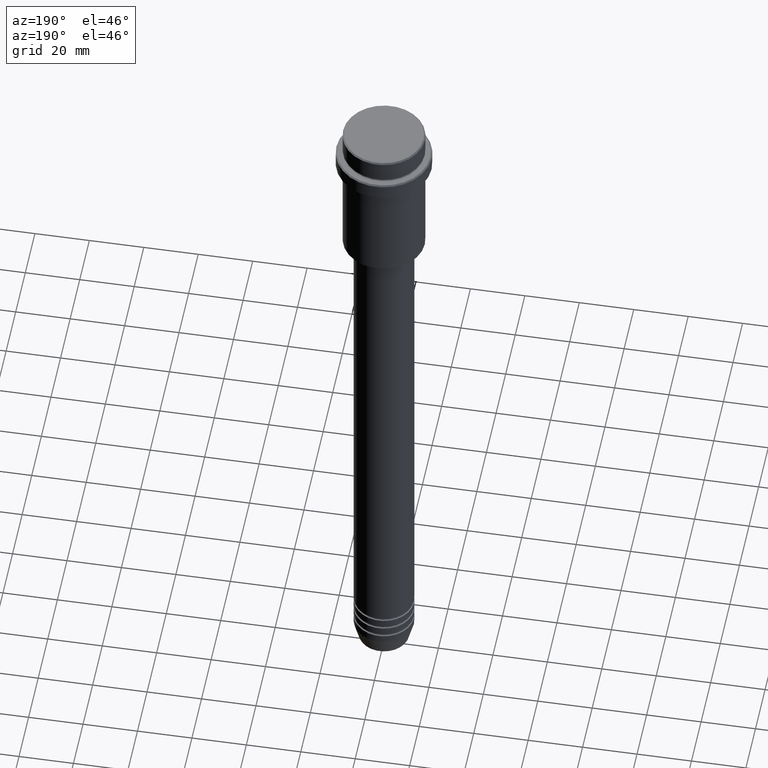
[diagram: clean part render]
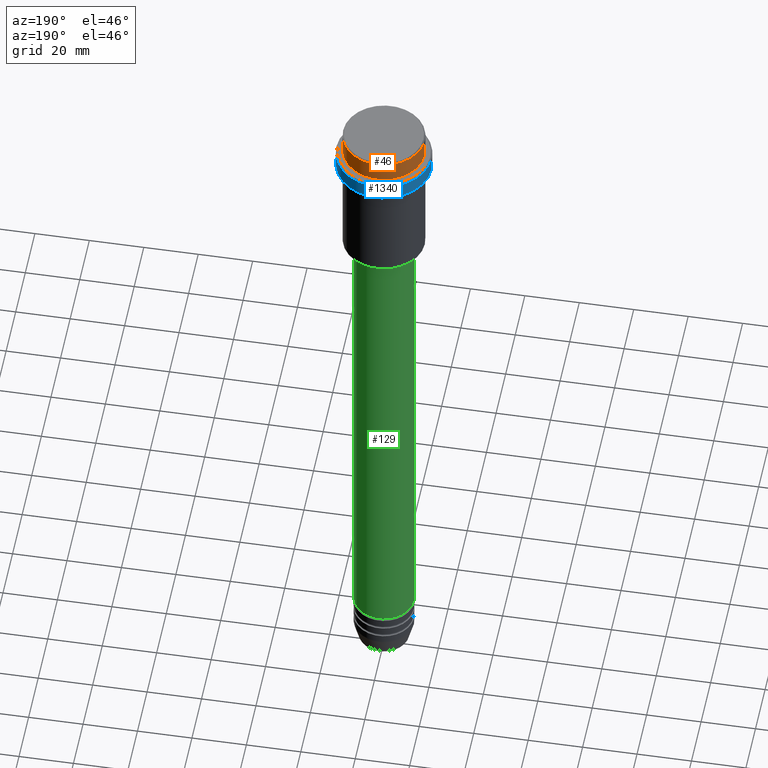
[diagram: same view with three faces highlighted in distinct colors, each labeled with its STEP entity id]
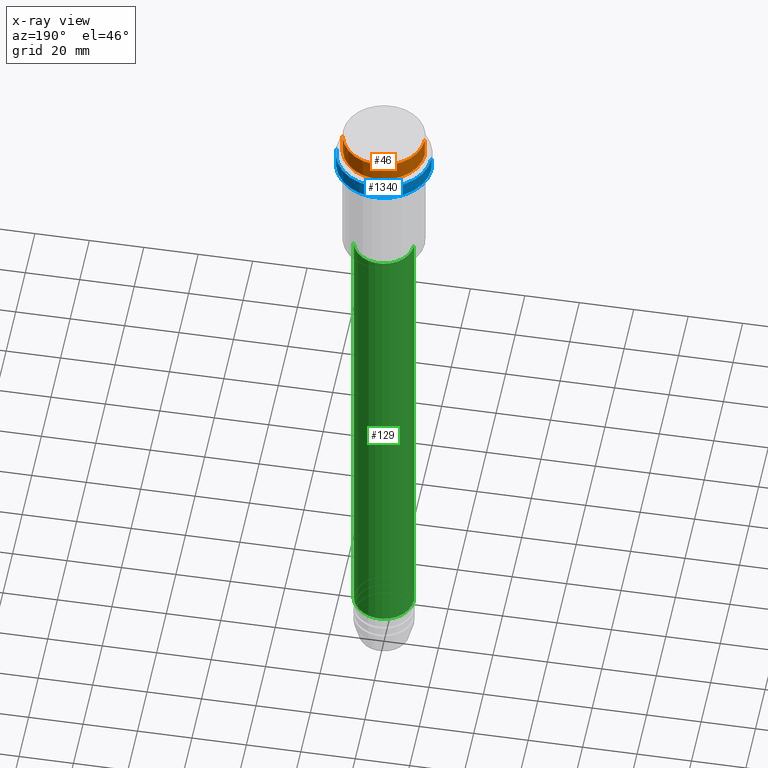
[diagram: x-ray of the same camera — body ghosted, the three highlighted faces saturated]
A machine part, auxiliary view with three faces highlighted in distinct colors.
The next image is the same camera in x-ray (body ghosted, the three faces saturated) — at least one of them is partly hidden behind the body in this view.
Their STEP definitions:

[orange] entity #46 — the highlighted cylindrical surface (partial cylindrical patch) has radius 15 mm, axis along (-0, -0, 1).
#21 = CARTESIAN_POINT ( 'NONE',  ( 0.000000000000000000, 0.000000000000000000, 0.000000000000000000 ) ) ;
#23 = CYLINDRICAL_SURFACE ( 'NONE', #1028, 15.00000000000000000 ) ;
#46 = ADVANCED_FACE ( 'NONE', ( #1266 ), #23, .T. ) ;
#82 = CIRCLE ( 'NONE', #259, 15.00000000000000000 ) ;
#83 = CARTESIAN_POINT ( 'NONE',  ( 15.00000000000000000, 0.000000000000000000, -7.999999999999998224 ) ) ;
#95 = CARTESIAN_POINT ( 'NONE',  ( 15.00000000000000000, 0.000000000000000000, -0.5000000000000108802 ) ) ;
#128 = CARTESIAN_POINT ( 'NONE',  ( -15.00000000000000000, 1.836970198721029589E-15, 0.000000000000000000 ) ) ;
#148 = CARTESIAN_POINT ( 'NONE',  ( -15.00000000000000000, 1.836970198721029589E-15, -7.999999999999998224 ) ) ;
#153 = ORIENTED_EDGE ( 'NONE', *, *, #730, .T. ) ;
#191 = AXIS2_PLACEMENT_3D ( 'NONE', #623, #1064, #1281 ) ;
#202 = ORIENTED_EDGE ( 'NONE', *, *, #1039, .T. ) ;
#215 = VECTOR ( 'NONE', #1031, 1000.000000000000000 ) ;
#259 = AXIS2_PLACEMENT_3D ( 'NONE', #668, #536, #1411 ) ;
#319 = DIRECTION ( 'NONE',  ( -0.000000000000000000, -0.000000000000000000, 1.000000000000000000 ) ) ;
#344 = VERTEX_POINT ( 'NONE', #95 ) ;
#512 = VERTEX_POINT ( 'NONE', #83 ) ;
#521 = DIRECTION ( 'NONE',  ( 1.000000000000000000, 0.000000000000000000, 0.000000000000000000 ) ) ;
#536 = DIRECTION ( 'NONE',  ( 0.000000000000000000, 0.000000000000000000, -1.000000000000000000 ) ) ;
#623 = CARTESIAN_POINT ( 'NONE',  ( 0.000000000000000000, 0.000000000000000000, -7.999999999999998224 ) ) ;
#665 = LINE ( 'NONE', #1187, #738 ) ;
#668 = CARTESIAN_POINT ( 'NONE',  ( 0.000000000000000000, 0.000000000000000000, -0.5000000000000108802 ) ) ;
#693 = ORIENTED_EDGE ( 'NONE', *, *, #1122, .F. ) ;
#709 = CIRCLE ( 'NONE', #191, 15.00000000000000000 ) ;
#730 = EDGE_CURVE ( 'NONE', #925, #344, #82, .T. ) ;
#738 = VECTOR ( 'NONE', #1106, 1000.000000000000000 ) ;
#771 = VERTEX_POINT ( 'NONE', #148 ) ;
#798 = LINE ( 'NONE', #128, #215 ) ;
#870 = EDGE_CURVE ( 'NONE', #771, #925, #798, .T. ) ;
#925 = VERTEX_POINT ( 'NONE', #1247 ) ;
#1028 = AXIS2_PLACEMENT_3D ( 'NONE', #21, #319, #521 ) ;
#1031 = DIRECTION ( 'NONE',  ( -0.000000000000000000, -0.000000000000000000, 1.000000000000000000 ) ) ;
#1039 = EDGE_CURVE ( 'NONE', #512, #771, #709, .T. ) ;
#1064 = DIRECTION ( 'NONE',  ( -0.000000000000000000, -0.000000000000000000, 1.000000000000000000 ) ) ;
#1106 = DIRECTION ( 'NONE',  ( -0.000000000000000000, -0.000000000000000000, 1.000000000000000000 ) ) ;
#1122 = EDGE_CURVE ( 'NONE', #512, #344, #665, .T. ) ;
#1187 = CARTESIAN_POINT ( 'NONE',  ( 15.00000000000000000, 0.000000000000000000, 0.000000000000000000 ) ) ;
#1247 = CARTESIAN_POINT ( 'NONE',  ( -15.00000000000000000, 1.836970198721029589E-15, -0.5000000000000108802 ) ) ;
#1266 = FACE_OUTER_BOUND ( 'NONE', #1373, .T. ) ;
#1281 = DIRECTION ( 'NONE',  ( 1.000000000000000000, 0.000000000000000000, 0.000000000000000000 ) ) ;
#1350 = ORIENTED_EDGE ( 'NONE', *, *, #870, .T. ) ;
#1373 = EDGE_LOOP ( 'NONE', ( #202, #1350, #153, #693 ) ) ;
#1411 = DIRECTION ( 'NONE',  ( 1.000000000000000000, 0.000000000000000000, 0.000000000000000000 ) ) ;

[blue] entity #1340 — the highlighted cylindrical surface (partial cylindrical patch) has radius 17.5 mm, axis along (-0, -0, 1).
#30 = LINE ( 'NONE', #491, #1361 ) ;
#68 = CARTESIAN_POINT ( 'NONE',  ( -17.50000000000000000, 2.143131898507868248E-15, 0.000000000000000000 ) ) ;
#124 = CARTESIAN_POINT ( 'NONE',  ( -17.50000000000000000, 2.143131898507868248E-15, -15.00000000000000000 ) ) ;
#126 = DIRECTION ( 'NONE',  ( -0.000000000000000000, -0.000000000000000000, 1.000000000000000000 ) ) ;
#146 = AXIS2_PLACEMENT_3D ( 'NONE', #1157, #181, #832 ) ;
#155 = EDGE_CURVE ( 'NONE', #932, #362, #522, .T. ) ;
#181 = DIRECTION ( 'NONE',  ( 0.000000000000000000, 0.000000000000000000, -1.000000000000000000 ) ) ;
#216 = AXIS2_PLACEMENT_3D ( 'NONE', #339, #126, #243 ) ;
#243 = DIRECTION ( 'NONE',  ( 1.000000000000000000, 0.000000000000000000, 0.000000000000000000 ) ) ;
#244 = ORIENTED_EDGE ( 'NONE', *, *, #978, .T. ) ;
#273 = ORIENTED_EDGE ( 'NONE', *, *, #1036, .T. ) ;
#339 = CARTESIAN_POINT ( 'NONE',  ( 0.000000000000000000, 0.000000000000000000, 0.000000000000000000 ) ) ;
#362 = VERTEX_POINT ( 'NONE', #124 ) ;
#396 = ORIENTED_EDGE ( 'NONE', *, *, #785, .F. ) ;
#401 = AXIS2_PLACEMENT_3D ( 'NONE', #1155, #1277, #825 ) ;
#463 = DIRECTION ( 'NONE',  ( -0.000000000000000000, -0.000000000000000000, 1.000000000000000000 ) ) ;
#491 = CARTESIAN_POINT ( 'NONE',  ( 17.50000000000000000, 0.000000000000000000, 0.000000000000000000 ) ) ;
#498 = EDGE_LOOP ( 'NONE', ( #761, #273, #244, #396 ) ) ;
#501 = LINE ( 'NONE', #68, #1321 ) ;
#522 = CIRCLE ( 'NONE', #401, 17.50000000000000000 ) ;
#533 = VERTEX_POINT ( 'NONE', #812 ) ;
#581 = CYLINDRICAL_SURFACE ( 'NONE', #216, 17.50000000000000000 ) ;
#744 = CARTESIAN_POINT ( 'NONE',  ( 17.50000000000000000, 0.000000000000000000, -15.00000000000000000 ) ) ;
#761 = ORIENTED_EDGE ( 'NONE', *, *, #155, .T. ) ;
#785 = EDGE_CURVE ( 'NONE', #932, #533, #30, .T. ) ;
#812 = CARTESIAN_POINT ( 'NONE',  ( 17.50000000000000000, 0.000000000000000000, -9.500000000000000000 ) ) ;
#825 = DIRECTION ( 'NONE',  ( 1.000000000000000000, 0.000000000000000000, 0.000000000000000000 ) ) ;
#832 = DIRECTION ( 'NONE',  ( 1.000000000000000000, 0.000000000000000000, 0.000000000000000000 ) ) ;
#932 = VERTEX_POINT ( 'NONE', #744 ) ;
#978 = EDGE_CURVE ( 'NONE', #1292, #533, #1181, .T. ) ;
#1007 = FACE_OUTER_BOUND ( 'NONE', #498, .T. ) ;
#1036 = EDGE_CURVE ( 'NONE', #362, #1292, #501, .T. ) ;
#1155 = CARTESIAN_POINT ( 'NONE',  ( 0.000000000000000000, 0.000000000000000000, -15.00000000000000000 ) ) ;
#1157 = CARTESIAN_POINT ( 'NONE',  ( 0.000000000000000000, 0.000000000000000000, -9.500000000000000000 ) ) ;
#1181 = CIRCLE ( 'NONE', #146, 17.50000000000000000 ) ;
#1245 = CARTESIAN_POINT ( 'NONE',  ( -17.50000000000000000, 2.143131898507868248E-15, -9.500000000000000000 ) ) ;
#1267 = DIRECTION ( 'NONE',  ( -0.000000000000000000, -0.000000000000000000, 1.000000000000000000 ) ) ;
#1277 = DIRECTION ( 'NONE',  ( -0.000000000000000000, -0.000000000000000000, 1.000000000000000000 ) ) ;
#1292 = VERTEX_POINT ( 'NONE', #1245 ) ;
#1321 = VECTOR ( 'NONE', #1267, 1000.000000000000000 ) ;
#1340 = ADVANCED_FACE ( 'NONE', ( #1007 ), #581, .T. ) ;
#1361 = VECTOR ( 'NONE', #463, 1000.000000000000000 ) ;

[green] entity #129 — the highlighted cylindrical surface (edge-blend (fillet) strip) has radius 11 mm, axis along (-0, -0, 1).
#62 = EDGE_LOOP ( 'NONE', ( #571, #65, #468, #394 ) ) ;
#65 = ORIENTED_EDGE ( 'NONE', *, *, #433, .T. ) ;
#98 = VECTOR ( 'NONE', #404, 1000.000000000000000 ) ;
#129 = ADVANCED_FACE ( 'NONE', ( #808 ), #1133, .T. ) ;
#204 = EDGE_CURVE ( 'NONE', #950, #272, #432, .T. ) ;
#235 = CIRCLE ( 'NONE', #889, 11.00000000000000000 ) ;
#272 = VERTEX_POINT ( 'NONE', #1184 ) ;
#281 = VERTEX_POINT ( 'NONE', #298 ) ;
#298 = CARTESIAN_POINT ( 'NONE',  ( -11.00000000000000000, 1.347111479062088405E-15, -240.9999999999998863 ) ) ;
#338 = LINE ( 'NONE', #784, #1077 ) ;
#360 = DIRECTION ( 'NONE',  ( -0.000000000000000000, -0.000000000000000000, 1.000000000000000000 ) ) ;
#394 = ORIENTED_EDGE ( 'NONE', *, *, #204, .F. ) ;
#404 = DIRECTION ( 'NONE',  ( -0.000000000000000000, -0.000000000000000000, 1.000000000000000000 ) ) ;
#432 = LINE ( 'NONE', #770, #98 ) ;
#433 = EDGE_CURVE ( 'NONE', #281, #553, #338, .T. ) ;
#468 = ORIENTED_EDGE ( 'NONE', *, *, #881, .F. ) ;
#553 = VERTEX_POINT ( 'NONE', #1026 ) ;
#571 = ORIENTED_EDGE ( 'NONE', *, *, #660, .T. ) ;
#582 = DIRECTION ( 'NONE',  ( 1.000000000000000000, 0.000000000000000000, 0.000000000000000000 ) ) ;
#659 = CARTESIAN_POINT ( 'NONE',  ( 0.000000000000000000, 0.000000000000000000, -240.9999999999998863 ) ) ;
#660 = EDGE_CURVE ( 'NONE', #950, #281, #235, .T. ) ;
#770 = CARTESIAN_POINT ( 'NONE',  ( 11.00000000000000000, 0.000000000000000000, 0.000000000000000000 ) ) ;
#784 = CARTESIAN_POINT ( 'NONE',  ( -11.00000000000000000, 1.347111479062088405E-15, 0.000000000000000000 ) ) ;
#808 = FACE_OUTER_BOUND ( 'NONE', #62, .T. ) ;
#856 = DIRECTION ( 'NONE',  ( -0.000000000000000000, -0.000000000000000000, 1.000000000000000000 ) ) ;
#881 = EDGE_CURVE ( 'NONE', #272, #553, #1033, .T. ) ;
#889 = AXIS2_PLACEMENT_3D ( 'NONE', #659, #856, #1198 ) ;
#918 = CARTESIAN_POINT ( 'NONE',  ( 0.000000000000000000, 0.000000000000000000, 0.000000000000000000 ) ) ;
#944 = DIRECTION ( 'NONE',  ( -0.000000000000000000, -0.000000000000000000, 1.000000000000000000 ) ) ;
#950 = VERTEX_POINT ( 'NONE', #1053 ) ;
#957 = AXIS2_PLACEMENT_3D ( 'NONE', #918, #944, #1343 ) ;
#1026 = CARTESIAN_POINT ( 'NONE',  ( -10.99999999999999822, 1.347111479062088207E-15, -56.00000000000002132 ) ) ;
#1033 = CIRCLE ( 'NONE', #1060, 10.99999999999999822 ) ;
#1053 = CARTESIAN_POINT ( 'NONE',  ( 11.00000000000000000, 0.000000000000000000, -240.9999999999998863 ) ) ;
#1060 = AXIS2_PLACEMENT_3D ( 'NONE', #1236, #360, #582 ) ;
#1077 = VECTOR ( 'NONE', #1213, 1000.000000000000000 ) ;
#1133 = CYLINDRICAL_SURFACE ( 'NONE', #957, 11.00000000000000000 ) ;
#1184 = CARTESIAN_POINT ( 'NONE',  ( 10.99999999999999822, 0.000000000000000000, -56.00000000000002132 ) ) ;
#1198 = DIRECTION ( 'NONE',  ( 1.000000000000000000, 0.000000000000000000, 0.000000000000000000 ) ) ;
#1213 = DIRECTION ( 'NONE',  ( -0.000000000000000000, -0.000000000000000000, 1.000000000000000000 ) ) ;
#1236 = CARTESIAN_POINT ( 'NONE',  ( 0.000000000000000000, 0.000000000000000000, -56.00000000000002132 ) ) ;
#1343 = DIRECTION ( 'NONE',  ( 1.000000000000000000, 0.000000000000000000, 0.000000000000000000 ) ) ;